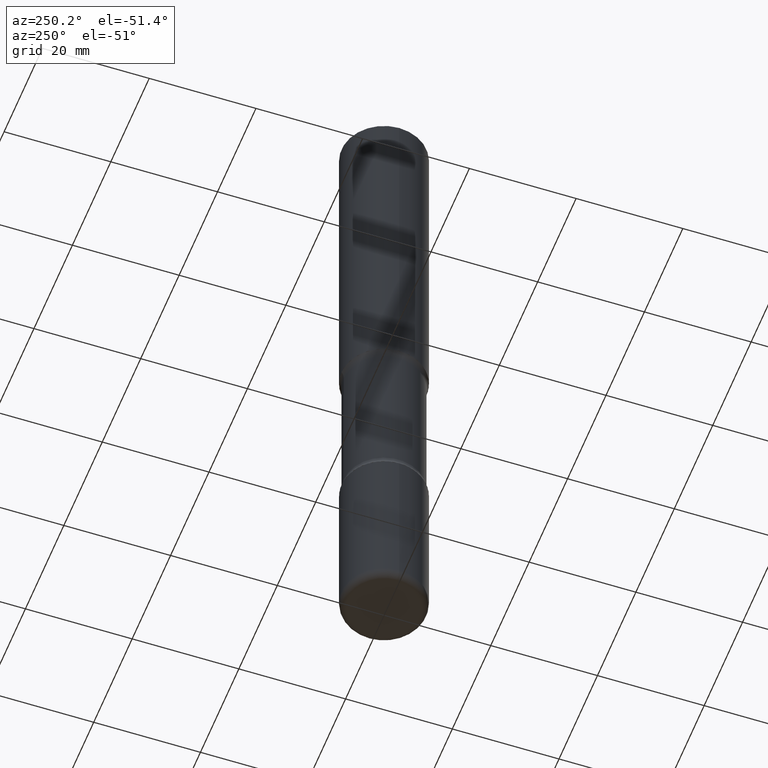
[diagram: clean part render]
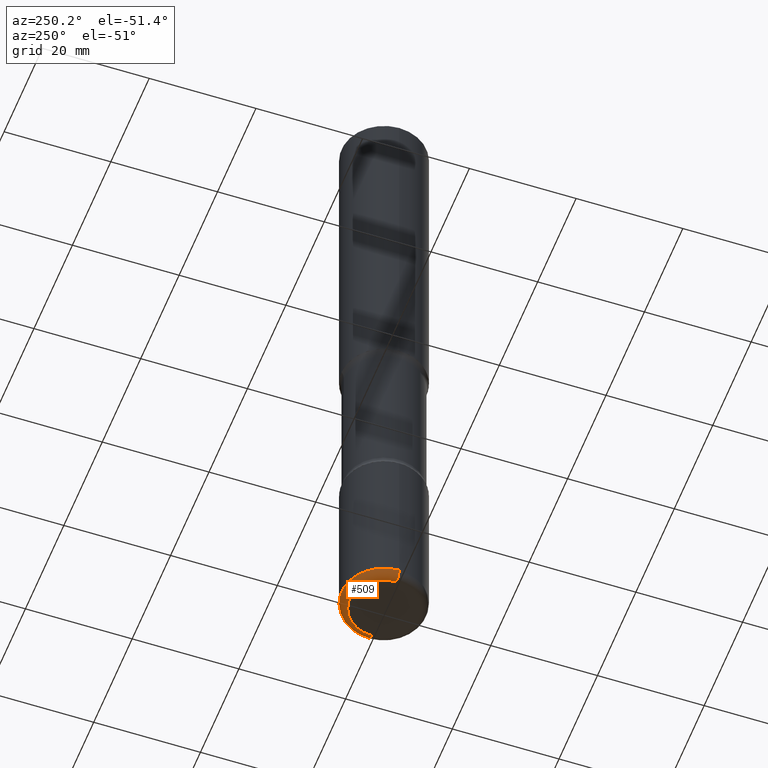
[diagram: same view with one face highlighted and labeled with its STEP entity id]
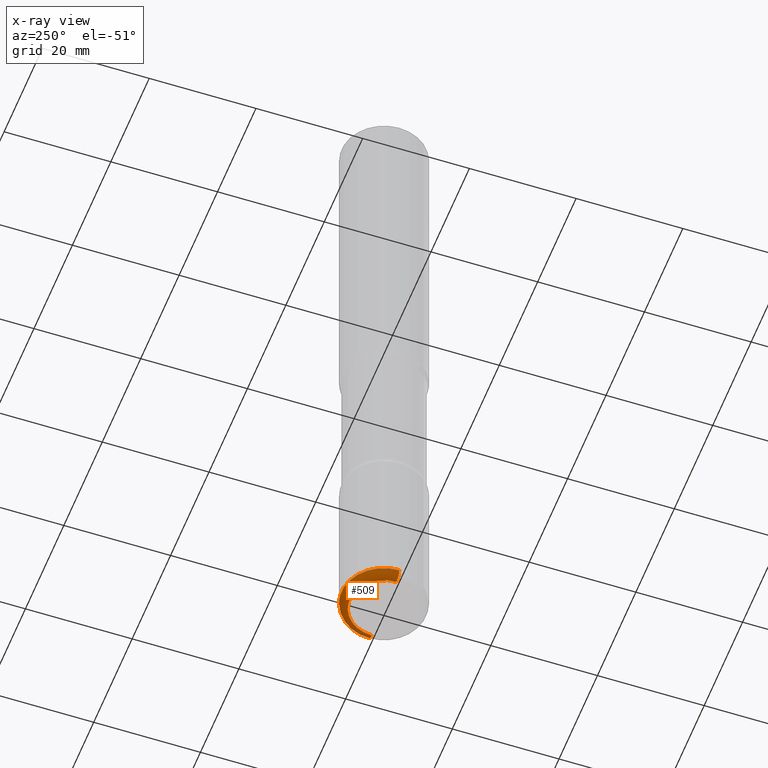
[diagram: x-ray of the same camera — body ghosted, the highlighted face saturated]
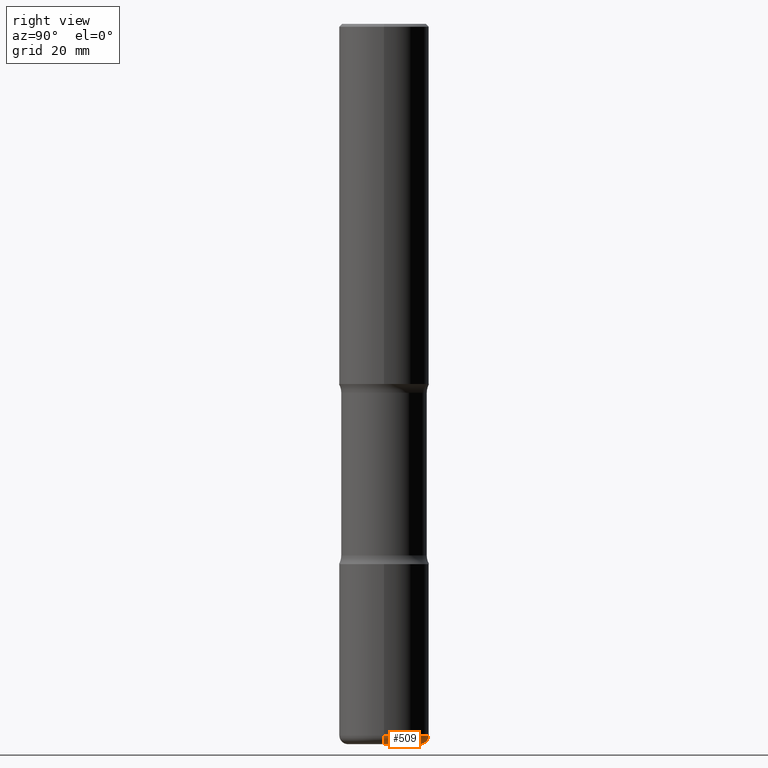
[diagram: same view with one face highlighted and labeled with its STEP entity id]
A machine part, auxiliary view. The second image highlights one B-rep face of the part: STEP entity #509.
The next image is the same camera in x-ray: the body ghosted, the highlighted face saturated — about 0% of this face is hidden behind the body in this view.
A second angle (right view) of the same face is appended — the face is thin or edge-on in the first view.
In plain terms, the highlighted toroidal blend (fillet) surface has major radius 6.4135 mm and minor (blend) radius 1.524 mm.
Its self-contained STEP definition (entity closure, byte-faithful):
#8 = CARTESIAN_POINT ( 'NONE',  ( 1.208061590255457820E-28, -1.724791781388514630E-14, -4.940000000000001279 ) ) ;
#11 = AXIS2_PLACEMENT_3D ( 'NONE', #481, #136, #193 ) ;
#63 = EDGE_CURVE ( 'NONE', #506, #504, #510, .T. ) ;
#76 = AXIS2_PLACEMENT_3D ( 'NONE', #8, #343, #526 ) ;
#84 = DIRECTION ( 'NONE',  ( 1.000000000000000000, -6.982962677686262766E-15, 0.000000000000000000 ) ) ;
#100 = CARTESIAN_POINT ( 'NONE',  ( 0.3125000000000000000, -1.943009365066209992E-14, -4.940000000000001279 ) ) ;
#113 = ORIENTED_EDGE ( 'NONE', *, *, #330, .T. ) ;
#115 = CIRCLE ( 'NONE', #11, 0.2525000000000002798 ) ;
#136 = DIRECTION ( 'NONE',  ( -2.445468806185136597E-29, 3.491481338843145583E-15, 1.000000000000000000 ) ) ;
#140 = ORIENTED_EDGE ( 'NONE', *, *, #233, .F. ) ;
#152 = ORIENTED_EDGE ( 'NONE', *, *, #217, .F. ) ;
#155 = CARTESIAN_POINT ( 'NONE',  ( 0.2525000000000002798, -1.922060477033151318E-14, -5.000000000000000000 ) ) ;
#156 = AXIS2_PLACEMENT_3D ( 'NONE', #447, #476, #367 ) ;
#159 = CARTESIAN_POINT ( 'NONE',  ( 0.2525000000000002798, -1.901111589000092644E-14, -4.940000000000001279 ) ) ;
#167 = CARTESIAN_POINT ( 'NONE',  ( 1.208061590255457820E-28, -1.724791781388514630E-14, -4.940000000000001279 ) ) ;
#172 = EDGE_LOOP ( 'NONE', ( #113, #282, #140, #152 ) ) ;
#193 = DIRECTION ( 'NONE',  ( 1.000000000000000000, -6.982962677686261977E-15, 0.000000000000000000 ) ) ;
#217 = EDGE_CURVE ( 'NONE', #219, #323, #535, .T. ) ;
#219 = VERTEX_POINT ( 'NONE', #155 ) ;
#233 = EDGE_CURVE ( 'NONE', #323, #504, #321, .T. ) ;
#282 = ORIENTED_EDGE ( 'NONE', *, *, #63, .T. ) ;
#296 = FACE_OUTER_BOUND ( 'NONE', #172, .T. ) ;
#321 = CIRCLE ( 'NONE', #397, 0.3125000000000002776 ) ;
#322 = TOROIDAL_SURFACE ( 'NONE', #76, 0.2525000000000002798, 0.05999999999999940797 ) ;
#323 = VERTEX_POINT ( 'NONE', #100 ) ;
#330 = EDGE_CURVE ( 'NONE', #219, #506, #115, .T. ) ;
#339 = CARTESIAN_POINT ( 'NONE',  ( -0.2525000000000002798, -1.534537902552815526E-14, -5.000000000000000000 ) ) ;
#343 = DIRECTION ( 'NONE',  ( -2.445468806185136597E-29, 3.491481338843145583E-15, 1.000000000000000000 ) ) ;
#367 = DIRECTION ( 'NONE',  ( -1.000000000000000000, 7.105427357600997914E-15, 0.000000000000000000 ) ) ;
#397 = AXIS2_PLACEMENT_3D ( 'NONE', #167, #507, #84 ) ;
#427 = AXIS2_PLACEMENT_3D ( 'NONE', #159, #461, #499 ) ;
#447 = CARTESIAN_POINT ( 'NONE',  ( -0.2525000000000002798, -1.545379740609089056E-14, -4.940000000000001279 ) ) ;
#461 = DIRECTION ( 'NONE',  ( -6.982962677686266711E-15, -1.000000000000000000, 3.491481338843145583E-15 ) ) ;
#476 = DIRECTION ( 'NONE',  ( 7.105427357601001859E-15, 1.000000000000000000, -3.491481338843145583E-15 ) ) ;
#481 = CARTESIAN_POINT ( 'NONE',  ( 1.222734403092568523E-28, -1.745740669421572989E-14, -5.000000000000000000 ) ) ;
#499 = DIRECTION ( 'NONE',  ( 1.000000000000000000, -6.982962677686273810E-15, 0.000000000000000000 ) ) ;
#504 = VERTEX_POINT ( 'NONE', #552 ) ;
#506 = VERTEX_POINT ( 'NONE', #339 ) ;
#507 = DIRECTION ( 'NONE',  ( -2.445468806185136597E-29, 3.491481338843145583E-15, 1.000000000000000000 ) ) ;
#509 = ADVANCED_FACE ( 'NONE', ( #296 ), #322, .T. ) ;
#510 = CIRCLE ( 'NONE', #156, 0.05999999999999939410 ) ;
#526 = DIRECTION ( 'NONE',  ( 1.000000000000000000, -6.982962677686264344E-15, 4.883557194083111780E-29 ) ) ;
#535 = CIRCLE ( 'NONE', #427, 0.05999999999999939410 ) ;
#552 = CARTESIAN_POINT ( 'NONE',  ( -0.3125000000000000000, -1.502747176463483322E-14, -4.940000000000001279 ) ) ;